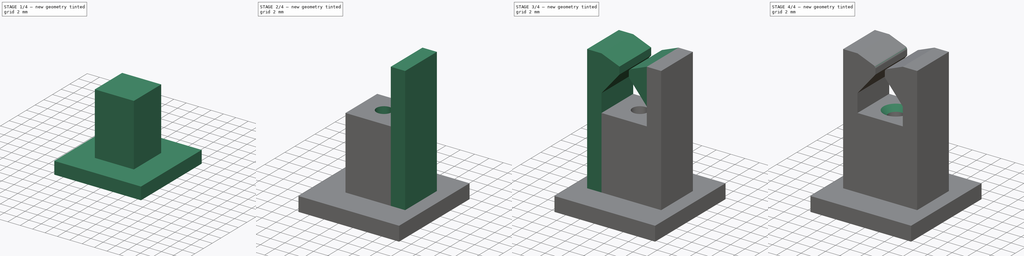
[diagram: build sequence overview — one tinted view per stage of 4, left to right]
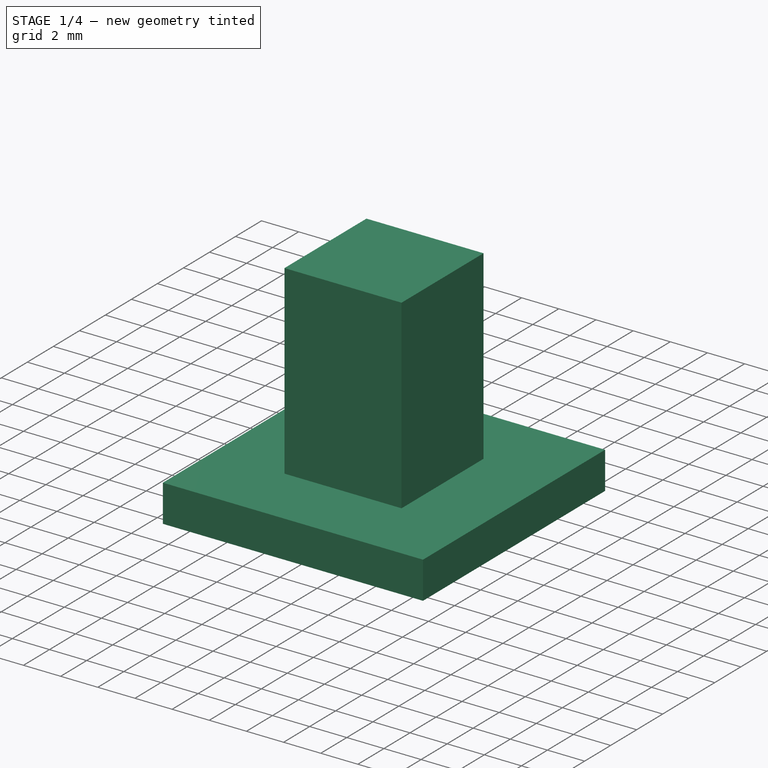
[diagram: stage 1 of 4 — iso view after this stage's code; geometry added in this stage tinted green]
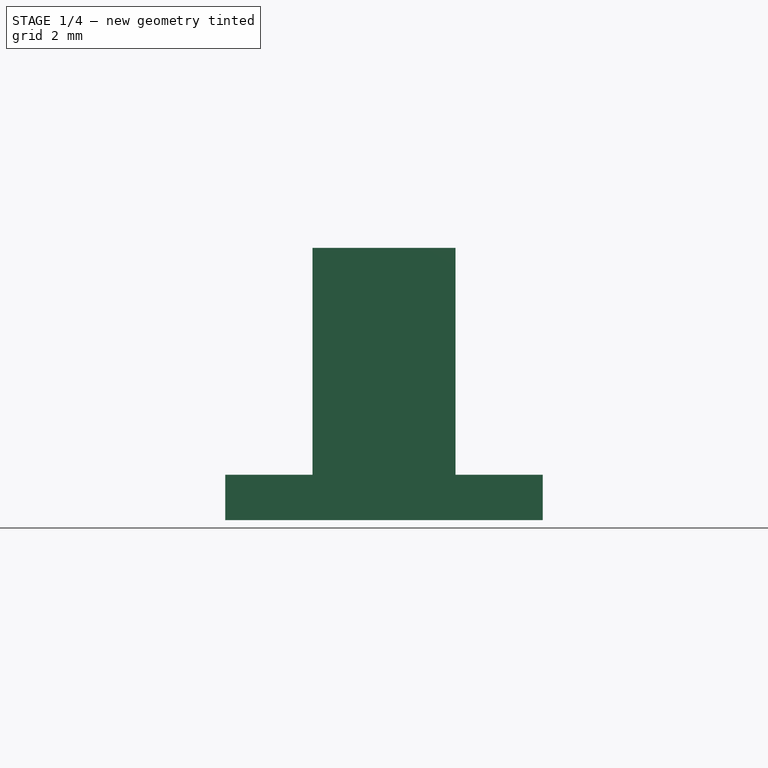
[diagram: stage 1 of 4 — front view after this stage's code; geometry added in this stage tinted green]
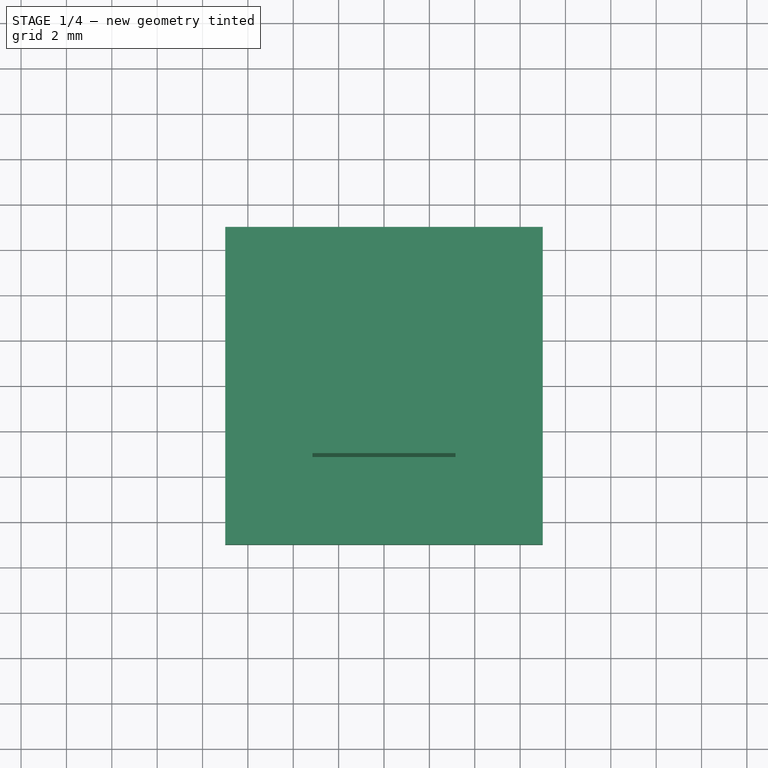
[diagram: stage 1 of 4 — top view after this stage's code; geometry added in this stage tinted green]
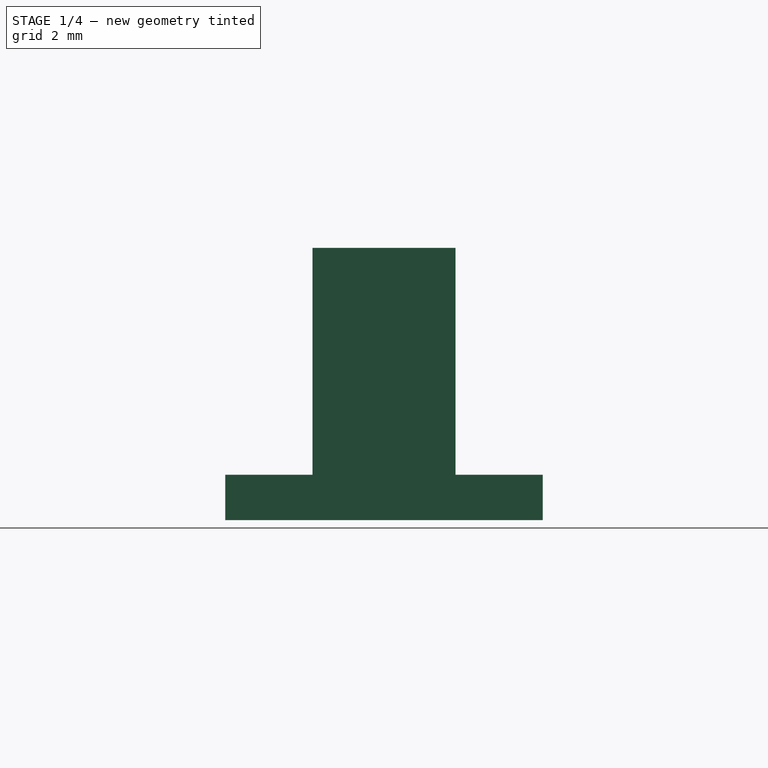
[diagram: stage 1 of 4 — right view after this stage's code; geometry added in this stage tinted green]
FCSTD DOCUMENT  (FreeCAD 1.0R39109 (Git))
Label: Wire End Plug v0.92
License: All rights reserved
LicenseURL: http://en.wikipedia.org/wiki/All_rights_reserved
objects: Sketcher::SketchObject×5, PartDesign::Pad×4, PartDesign::Fillet×2, Spreadsheet::Sheet×1, PartDesign::Pocket×1, PartDesign::Mirrored×1, PartDesign::Chamfer×1, PartDesign::Body×1, App::Part×1
note: 37 computed .brp shape members not serialized (recipe doc carries the construction recipe); baked Part::Feature solids carry a one-line shape summary decoded from their .brp

FEATURE [Sketcher::SketchObject] Sketch
  ArcFitTolerance = 0
  AttachmentSupport = -> [XY_Plane001]
  FullyConstrained = true
  MakeInternals = false
  MapMode = 5
  expr: Constraints[10] = 0.5 * <<Parameters>>.WireEndBodyWidth
  expr: Constraints[11] = <<Parameters>>.WireEndBodyWidth
  expr: Constraints[8] = <<Parameters>>.WireEndBodyWidth
  expr: Constraints[9] = 0.5 * <<Parameters>>.WireEndBodyWidth
  sketch-geometry (4):
    g0: LineSegment StartX=-3.15 StartY=3.15 StartZ=0 EndX=3.15 EndY=3.15 EndZ=0
    g1: LineSegment StartX=3.15 StartY=3.15 StartZ=0 EndX=3.15 EndY=-3.15 EndZ=0
    g2: LineSegment StartX=3.15 StartY=-3.15 StartZ=0 EndX=-3.15 EndY=-3.15 EndZ=0
    g3: LineSegment StartX=-3.15 StartY=-3.15 StartZ=0 EndX=-3.15 EndY=3.15 EndZ=0
  constraints (12):
    c: Coincident(g0,g1)
    c: Coincident(g1,g2)
    c: Coincident(g2,g3)
    c: Coincident(g3,g0)
    c: Horizontal(g0)
    c: Horizontal(g2)
    c: Vertical(g1)
    c: Vertical(g3)
    c: DistanceY(g2,g0) = 6.3
    c: DistanceX(g0,g-1) = 3.15
    c: DistanceY(g-1,g0) = 3.15
    c: DistanceX(g0,g0) = 6.3
FEATURE [Spreadsheet::Sheet] Spreadsheet  label="Parameters"
  cells = A3='WireEndInnerWireDiameter; B3(WireDiameter)=0.7; A4='WireEndWireHoleMultiplier; B4(WireEndWireHoleMultiplier)=3; A5='WireEndBodyWidth; B5(WireEndBodyWidth)==3 * B3 * B4; A6='WireEndBodyLength; B6(WireEndBodyLength)=10; A7='WireEndTotalWireDiameter; B7(WireEndTotalWireDiameter)=1.5; A8='WireEndBaseWidth; B8(WireEndBaseWidth)=14; A9='WireEndRetentionWingThickness; B9(WireEndRetentionWingThickness)=2
FEATURE [PartDesign::Pad] Pad  label="Main Body Pad"
  Direction = (0,0,1)
  Length = 10
  Length2 = 10
  Profile = -> Sketch
  ReferenceAxis = -> Sketch [N_Axis]
  Suppressed = false
  Type = 0
  expr: Length = <<Parameters>>.WireEndBodyLength
FEATURE [Sketcher::SketchObject] Sketch001
  ArcFitTolerance = 0
  AttachmentSupport = -> [XY_Plane001]
  FullyConstrained = true
  MakeInternals = false
  MapMode = 5
  expr: Constraints[10] = 0.5 * <<Parameters>>.WireEndBaseWidth
  expr: Constraints[11] = 0.5 * <<Parameters>>.WireEndBaseWidth
  expr: Constraints[8] = <<Parameters>>.WireEndBaseWidth
  expr: Constraints[9] = <<Parameters>>.WireEndBaseWidth
  sketch-geometry (4):
    g0: LineSegment StartX=-7 StartY=7 StartZ=0 EndX=7 EndY=7 EndZ=0
    g1: LineSegment StartX=7 StartY=7 StartZ=0 EndX=7 EndY=-7 EndZ=0
    g2: LineSegment StartX=7 StartY=-7 StartZ=0 EndX=-7 EndY=-7 EndZ=0
    g3: LineSegment StartX=-7 StartY=-7 StartZ=0 EndX=-7 EndY=7 EndZ=0
  constraints (12):
    c: Coincident(g0,g1)
    c: Coincident(g1,g2)
    c: Coincident(g2,g3)
    c: Coincident(g3,g0)
    c: Horizontal(g0)
    c: Horizontal(g2)
    c: Vertical(g1)
    c: Vertical(g3)
    c: DistanceX(g0,g0) = 14
    c: DistanceY(g2,g0) = 14
    c: DistanceX(g0,g-1) = 7
    c: DistanceY(g-1,g0) = 7
FEATURE [PartDesign::Pad] Pad001  label="Plug Grip Base Pad"
  BaseFeature = -> Pad
  Direction = (0,0,1)
  Length = 2
  Length2 = 10
  Profile = -> Sketch001
  ReferenceAxis = -> Sketch001 [N_Axis]
  Reversed = true
  Suppressed = false
  Type = 0
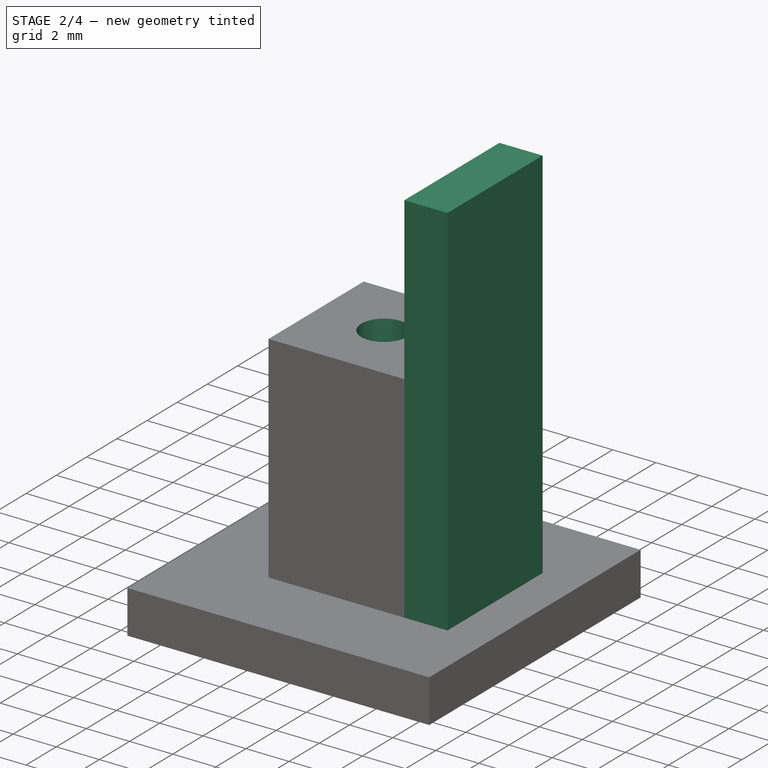
[diagram: stage 2 of 4 — iso view after this stage's code; geometry added in this stage tinted green]
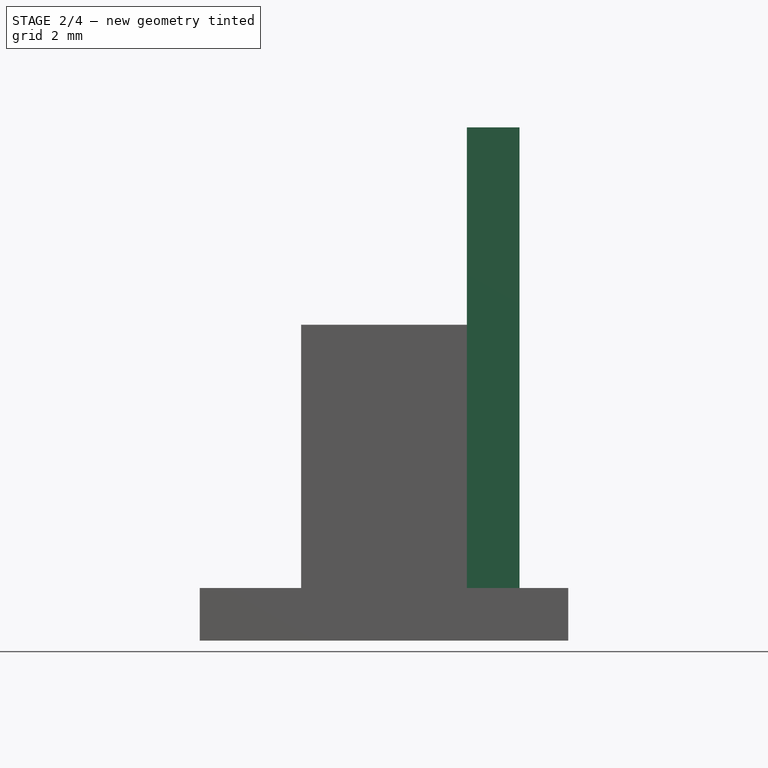
[diagram: stage 2 of 4 — front view after this stage's code; geometry added in this stage tinted green]
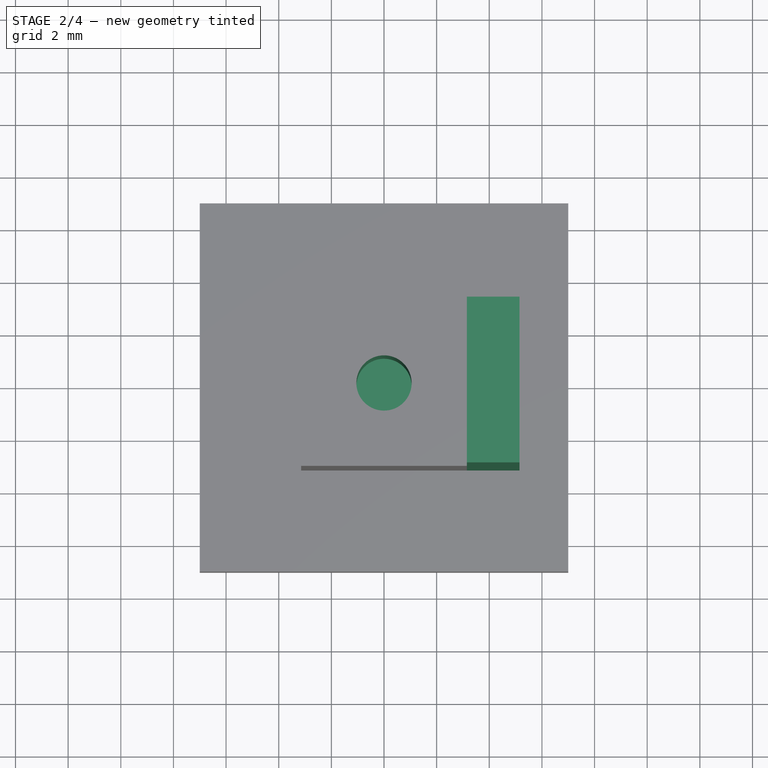
[diagram: stage 2 of 4 — top view after this stage's code; geometry added in this stage tinted green]
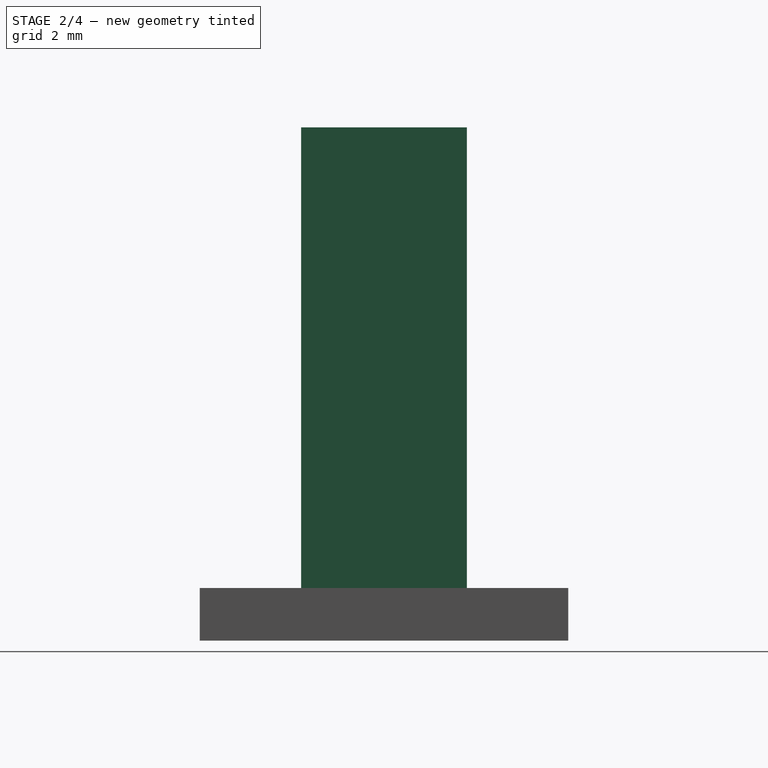
[diagram: stage 2 of 4 — right view after this stage's code; geometry added in this stage tinted green]
FEATURE [Sketcher::SketchObject] Sketch002
  ArcFitTolerance = 0
  AttachmentSupport = -> [Pad001]
  FullyConstrained = true
  MakeInternals = false
  MapMode = 5
  Placement = pos=(0,0,10) rot=(0,0,1;0rad)
  expr: Constraints[0] = <<Parameters>>.WireEndWireHoleMultiplier * <<Parameters>>.WireDiameter
  sketch-geometry (1):
    g0: Circle CenterX=0 CenterY=0 CenterZ=0 NormalX=0 NormalY=0 NormalZ=1 AngleXU=0 Radius=1.05
  constraints (2):
    c: Diameter(g0) = 2.1
    c: Coincident(g0,g-1)
FEATURE [PartDesign::Pocket] Pocket  label="Wire Pocket"
  BaseFeature = -> Pad001
  Direction = (0,0,-1)
  Length = 7.5
  Length2 = 5
  Profile = -> Sketch002
  ReferenceAxis = -> Sketch002 [N_Axis]
  Suppressed = false
  Type = 0
  expr: Length = 0.75 * <<Parameters>>.WireEndBodyLength
FEATURE [Sketcher::SketchObject] Sketch003
  ArcFitTolerance = 0
  AttachmentSupport = -> [Pocket]
  ExternalGeometry = -> [Pocket]
  FullyConstrained = true
  MakeInternals = false
  MapMode = 5
  Placement = pos=(3.15,0,0) rot=(0.57735,0.57735,0.57735;2.0944rad)
  expr: Constraints[10] = 1.75 * <<Parameters>>.WireEndBodyLength
  sketch-geometry (4):
    g0: LineSegment StartX=-3.15 StartY=17.5 StartZ=0 EndX=3.15 EndY=17.5 EndZ=0
    g1: LineSegment StartX=3.15 StartY=17.5 StartZ=0 EndX=3.15 EndY=0 EndZ=0
    g2: LineSegment StartX=3.15 StartY=0 StartZ=0 EndX=-3.15 EndY=0 EndZ=0
    g3: LineSegment StartX=-3.15 StartY=0 StartZ=0 EndX=-3.15 EndY=17.5 EndZ=0
  constraints (12):
    c: Coincident(g0,g1)
    c: Coincident(g1,g2)
    c: Coincident(g2,g3)
    c: Coincident(g3,g0)
    c: Horizontal(g0)
    c: Horizontal(g2)
    c: Vertical(g1)
    c: Vertical(g3)
    c: Vertical(g0,g-3)
    c: Vertical(g0,g-4)
    c: DistanceY(g2,g0) = 17.5
    c: Horizontal(g2,g-1)
FEATURE [PartDesign::Pad] Pad002  label="Retention Wing Pad"
  BaseFeature = -> Pocket
  Direction = (1,0,0)
  Length = 2
  Length2 = 10
  Profile = -> Sketch003
  ReferenceAxis = -> Sketch003 [N_Axis]
  Suppressed = false
  Type = 0
  expr: Length = <<Parameters>>.WireEndRetentionWingThickness
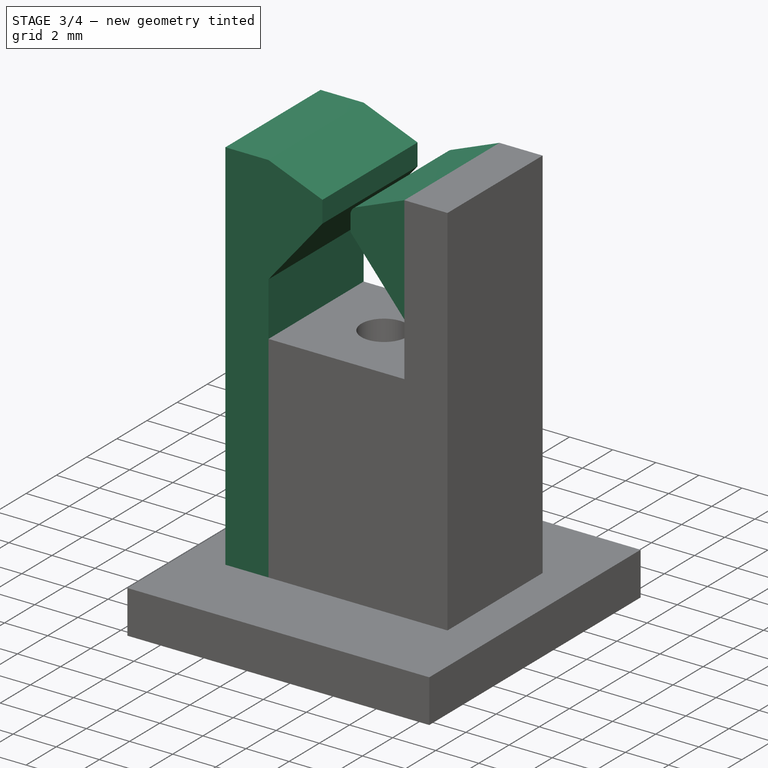
[diagram: stage 3 of 4 — iso view after this stage's code; geometry added in this stage tinted green]
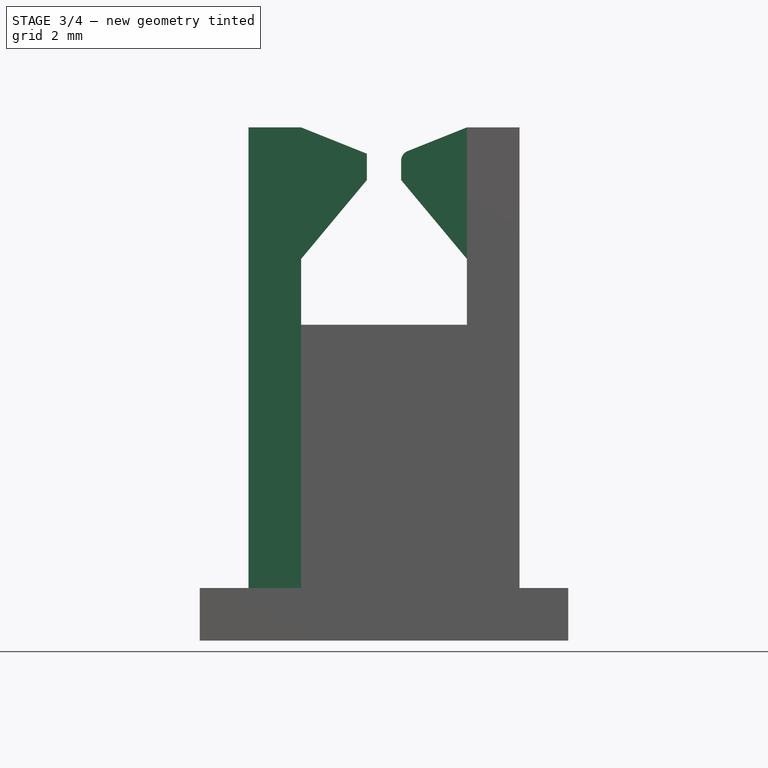
[diagram: stage 3 of 4 — front view after this stage's code; geometry added in this stage tinted green]
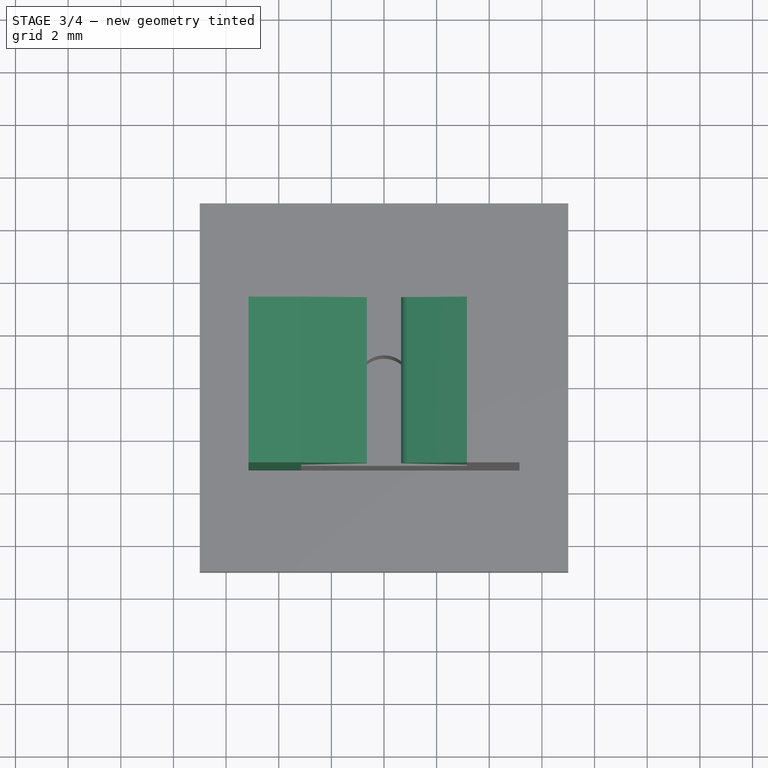
[diagram: stage 3 of 4 — top view after this stage's code; geometry added in this stage tinted green]
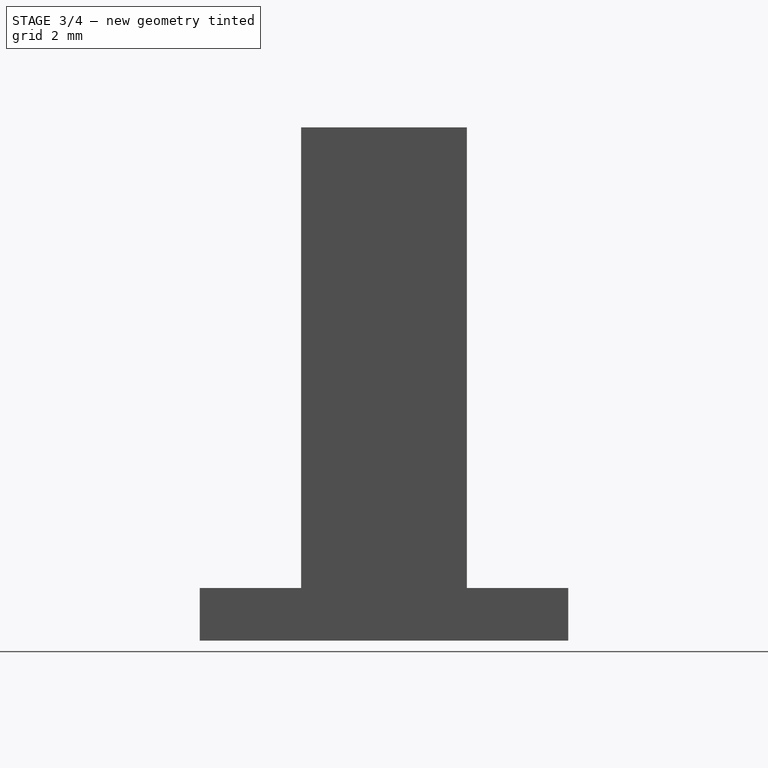
[diagram: stage 3 of 4 — right view after this stage's code; geometry added in this stage tinted green]
FEATURE [Sketcher::SketchObject] Sketch004
  ArcFitTolerance = 0
  AttachmentSupport = -> [Pad002]
  ExternalGeometry = -> [Pad002]
  FullyConstrained = true
  MakeInternals = false
  MapMode = 5
  Placement = pos=(0,-3.15,0) rot=(1,0,0;1.5708rad)
  expr: Constraints[7] = 0.5 * <<Parameters>>.WireEndTotalWireDiameter - 0.1
  sketch-geometry (4):
    g0: LineSegment StartX=3.15 StartY=17.5 StartZ=0 EndX=0.65 EndY=16.5 EndZ=0
    g1: LineSegment StartX=0.65 StartY=16.5 StartZ=0 EndX=0.65 EndY=15.5 EndZ=0
    g2: LineSegment StartX=0.65 StartY=15.5 StartZ=0 EndX=3.15 EndY=12.5 EndZ=0
    g3: LineSegment StartX=3.15 StartY=12.5 StartZ=0 EndX=3.15 EndY=17.5 EndZ=0
  constraints (11):
    c: Coincident(g0,g-3)
    c: Coincident(g1,g0)
    c: Vertical(g1)
    c: Coincident(g2,g1)
    c: Coincident(g3,g2)
    c: Coincident(g3,g0)
    c: Vertical(g3)
    c: DistanceX(g-1,g0) = 0.65
    c: DistanceY(g0,g0) = 1
    c: DistanceY(g1,g0) = 1
    c: DistanceY(g2,g1) = 3
FEATURE [PartDesign::Pad] Pad003  label="Retention Wing Tooth Pad"
  BaseFeature = -> Pad002
  Direction = (0,-1,2e-16)
  Length = 6.3
  Length2 = 10
  Profile = -> Sketch004
  ReferenceAxis = -> Sketch004 [N_Axis]
  Reversed = true
  Suppressed = false
  Type = 0
  expr: Length = <<Parameters>>.WireEndBodyWidth
FEATURE [PartDesign::Mirrored] Mirrored
  BaseFeature = -> Pad003
  MirrorPlane = -> Sketch004 [V_Axis]
  Originals = -> [Pad003,Pad002]
  Suppressed = false
  TransformMode = 0
FEATURE [PartDesign::Fillet] Fillet
  Base = -> Mirrored [Edge68]
  BaseFeature = -> Mirrored
  Radius = 0.4
  SupportTransform = false
  Suppressed = false
  UseAllEdges = false
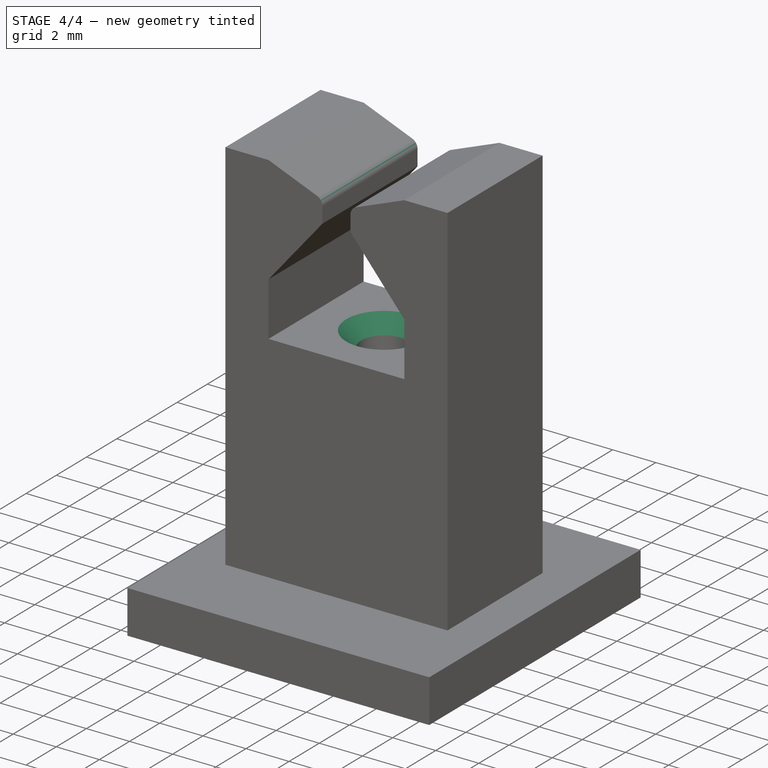
[diagram: stage 4 of 4 — iso view after this stage's code; geometry added in this stage tinted green]
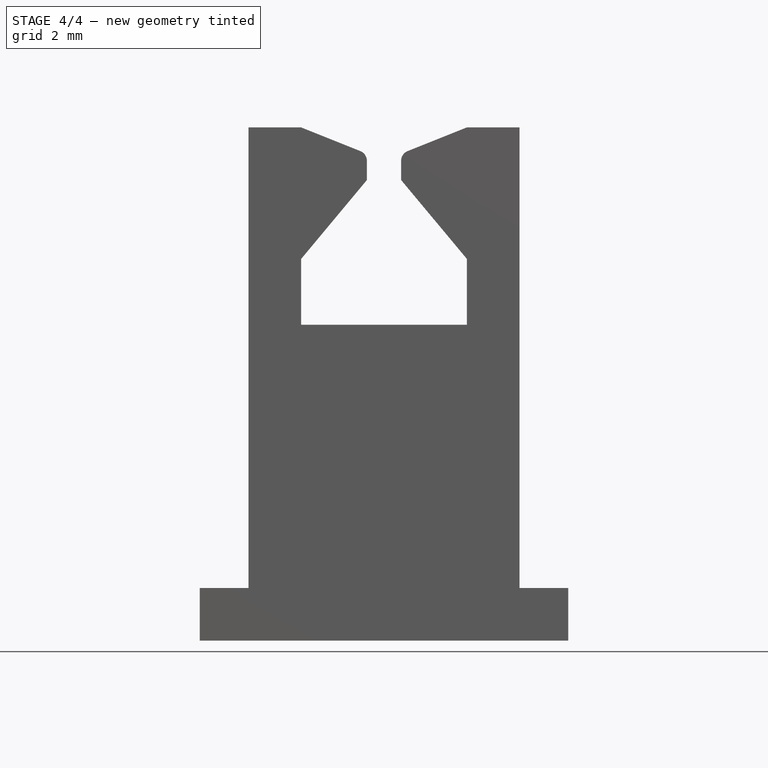
[diagram: stage 4 of 4 — front view after this stage's code; geometry added in this stage tinted green]
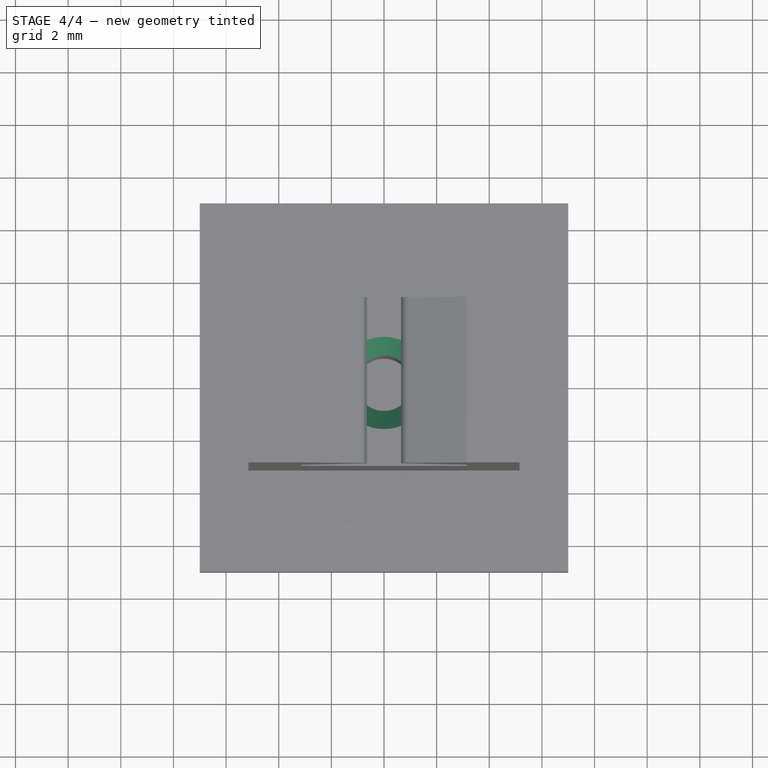
[diagram: stage 4 of 4 — top view after this stage's code; geometry added in this stage tinted green]
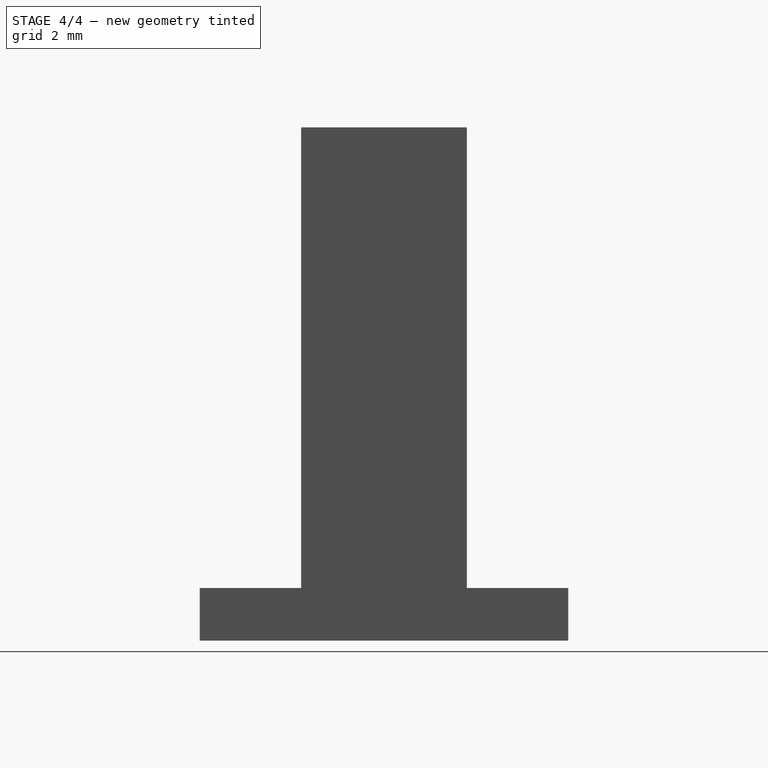
[diagram: stage 4 of 4 — right view after this stage's code; geometry added in this stage tinted green]
FEATURE [PartDesign::Fillet] Fillet001
  Base = -> Fillet [Edge71]
  BaseFeature = -> Fillet
  Radius = 0.4
  SupportTransform = false
  Suppressed = false
  UseAllEdges = false
FEATURE [PartDesign::Chamfer] Chamfer
  Angle = 45
  Base = -> Fillet001 [Edge60]
  BaseFeature = -> Fillet001
  ChamferType = 0
  FlipDirection = false
  Size = 0.7
  Size2 = 1
  SupportTransform = false
  Suppressed = false
  UseAllEdges = false
FEATURE [PartDesign::Body] Body  label="Wire-end Body"
  AllowCompound = false
  Group = -> [Sketch,Pad,Sketch001,Pad001,Sketch002,Pocket,Sketch003,Pad002,Sketch004,Pad003,Mirrored,Fillet,Fillet001,Chamfer]
  Origin = -> Origin001
  Tip = -> Chamfer
FEATURE [App::Part] Part  label="Wire-end Part"
  Group = -> [Body]
  Origin = -> Origin
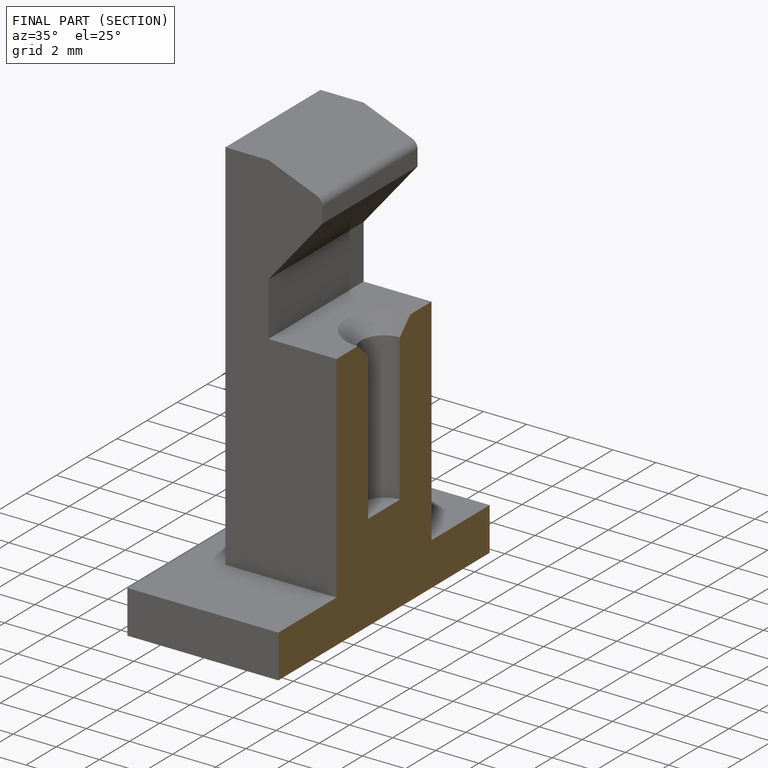
[diagram: finished part — half-section view (interior)]
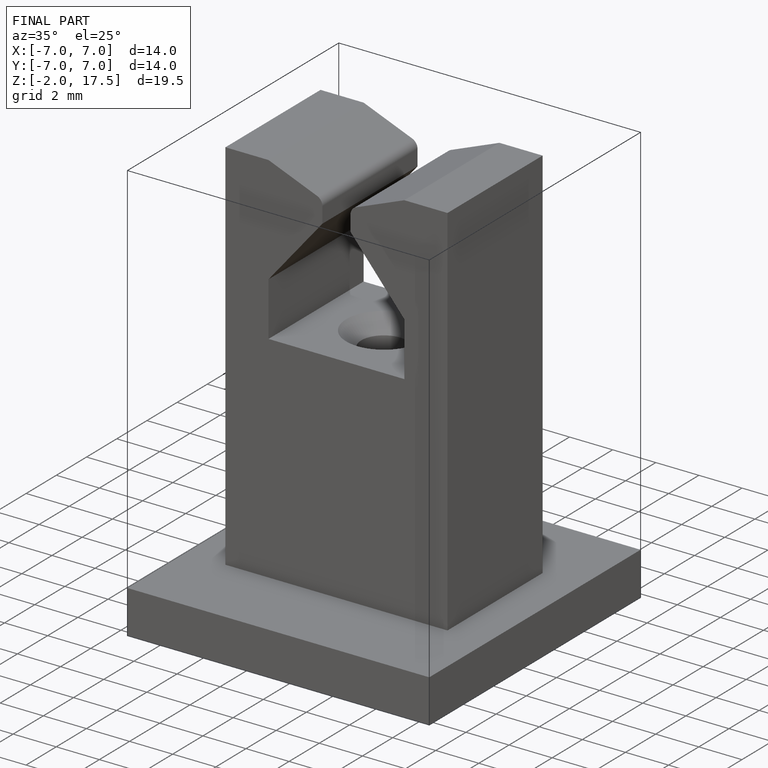
[diagram: finished part — iso view with bounding-box wireframe]
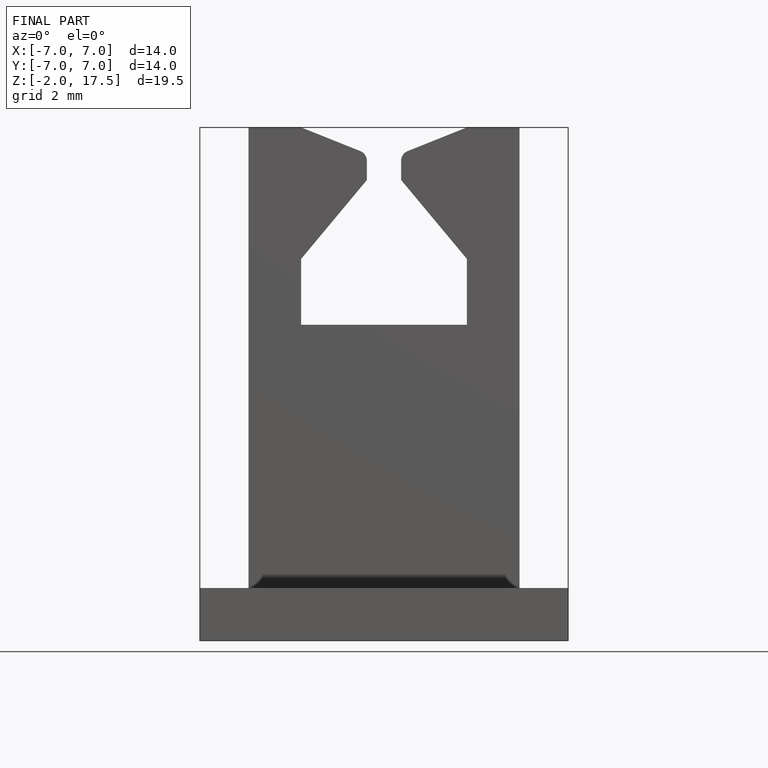
[diagram: finished part — front view with bounding-box wireframe]
